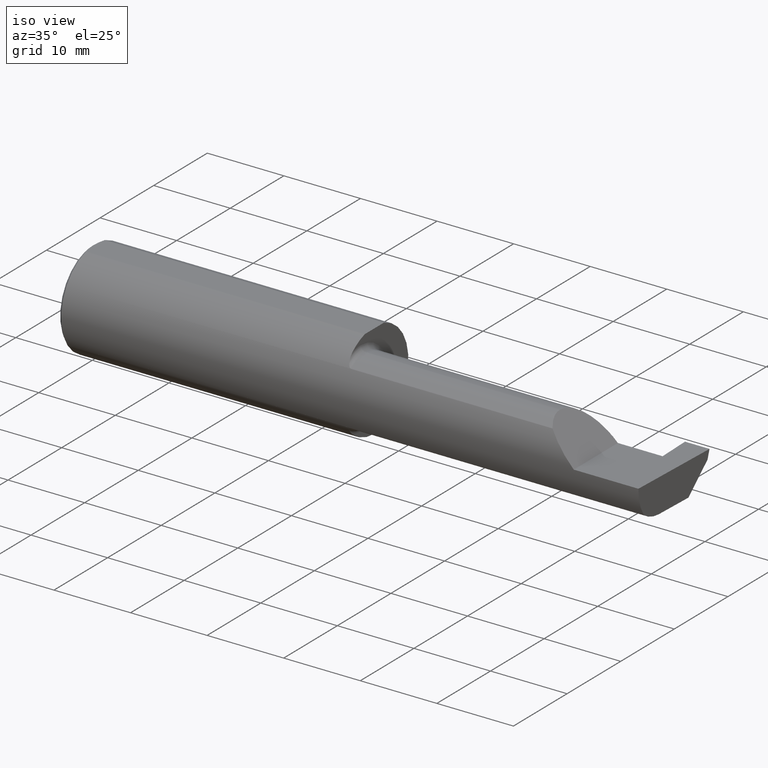
[diagram: clean part render]
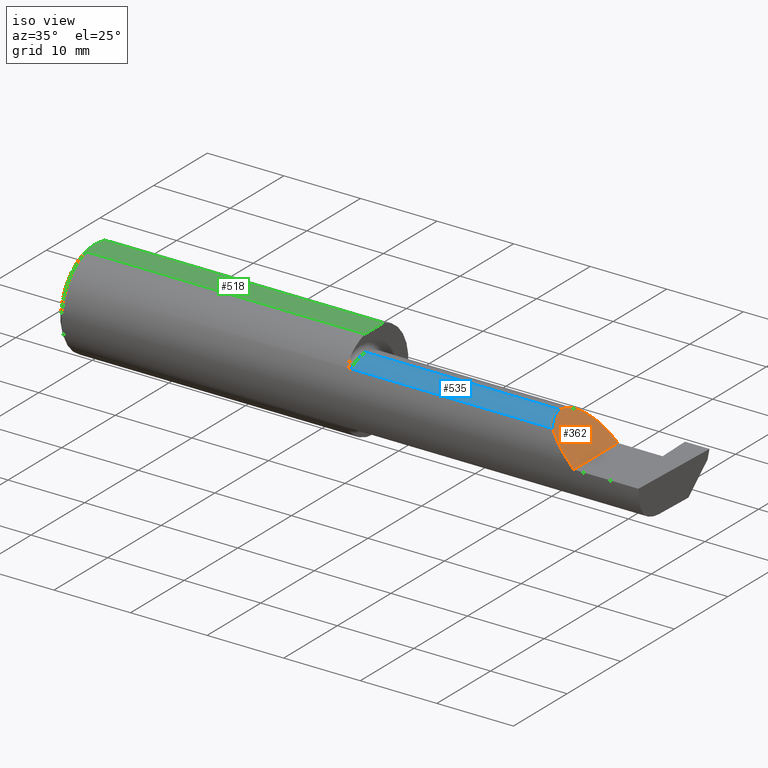
[diagram: same view with three faces highlighted in distinct colors, each labeled with its STEP entity id]
A machine part, iso view with three faces highlighted in distinct colors.
Their STEP definitions:

[orange] entity #362 — the highlighted planar face has unit normal (-0.7071, 0, -0.7071).
#4 = ORIENTED_EDGE ( 'NONE', *, *, #428, .T. ) ;
#64 = AXIS2_PLACEMENT_3D ( 'NONE', #365, #371, #617 ) ;
#69 = CARTESIAN_POINT ( 'NONE',  ( 2.475000000000001421, -0.1400387324517231857, 0.1750000000000000167 ) ) ;
#74 = CARTESIAN_POINT ( 'NONE',  ( 2.511704467739034552, -0.2080850024789292485, 0.1382955322609664139 ) ) ;
#94 = ORIENTED_EDGE ( 'NONE', *, *, #379, .F. ) ;
#131 = FACE_OUTER_BOUND ( 'NONE', #227, .T. ) ;
#132 = LINE ( 'NONE', #190, #451 ) ;
#138 = CARTESIAN_POINT ( 'NONE',  ( 2.650000000000000355, 0.07414999999999997982, 4.286263797015727350E-17 ) ) ;
#158 = VERTEX_POINT ( 'NONE', #222 ) ;
#190 = CARTESIAN_POINT ( 'NONE',  ( 2.650000000000000355, -0.2500000000000000555, 4.286263797015727350E-17 ) ) ;
#222 = CARTESIAN_POINT ( 'NONE',  ( 2.475000000000001421, -0.1008499999999999674, 0.1749999999999999889 ) ) ;
#227 = EDGE_LOOP ( 'NONE', ( #94, #711, #4, #323 ) ) ;
#259 = VERTEX_POINT ( 'NONE', #382 ) ;
#260 = CARTESIAN_POINT ( 'NONE',  ( 2.511704467739034552, -0.2080850024789292485, 0.1382955322609664139 ) ) ;
#323 = ORIENTED_EDGE ( 'NONE', *, *, #398, .F. ) ;
#324 = CARTESIAN_POINT ( 'NONE',  ( 2.650000000000000355, 0.07414999999999997982, 4.286263797015727350E-17 ) ) ;
#351 = CARTESIAN_POINT ( 'NONE',  ( 2.650000000000000355, -0.2498499999999999610, 4.286263797015727350E-17 ) ) ;
#362 = ADVANCED_FACE ( 'NONE', ( #131 ), #563, .F. ) ;
#365 = CARTESIAN_POINT ( 'NONE',  ( 2.650000000000000355, -0.2500000000000000555, 4.286263797015727350E-17 ) ) ;
#371 = DIRECTION ( 'NONE',  ( -0.7071067811865495711, 0.000000000000000000, -0.7071067811865454633 ) ) ;
#379 = EDGE_CURVE ( 'NONE', #609, #158, #454, .T. ) ;
#382 = CARTESIAN_POINT ( 'NONE',  ( 2.650000000000000355, -0.2498499999999999610, 4.286263797015727350E-17 ) ) ;
#398 = EDGE_CURVE ( 'NONE', #158, #506, #565, .T. ) ;
#428 = EDGE_CURVE ( 'NONE', #259, #506, #132, .T. ) ;
#439 = DIRECTION ( 'NONE',  ( -0.000000000000000000, 1.000000000000000000, -0.000000000000000000 ) ) ;
#451 = VECTOR ( 'NONE', #439, 39.37007874015748143 ) ;
#454 =( BOUNDED_CURVE ( )  B_SPLINE_CURVE ( 3, ( #260, #503, #69, #746 ),
 .UNSPECIFIED., .F., .T. ) 
 B_SPLINE_CURVE_WITH_KNOTS ( ( 4, 4 ),
 ( 5.623622464215678463, 6.283185307179586232 ),
 .UNSPECIFIED. ) 
 CURVE ( )  GEOMETRIC_REPRESENTATION_ITEM ( )  RATIONAL_B_SPLINE_CURVE ( ( 1.000000000000000000, 0.9640754331822828371, 0.9640754331822828371, 1.000000000000000000 ) ) 
 REPRESENTATION_ITEM ( '' )  );
#488 = CARTESIAN_POINT ( 'NONE',  ( 2.475000000000001421, -0.1008499999999999674, 0.1749999999999999889 ) ) ;
#503 = CARTESIAN_POINT ( 'NONE',  ( 2.487690731615568307, -0.1771157075472510889, 0.1623092683844330197 ) ) ;
#506 = VERTEX_POINT ( 'NONE', #324 ) ;
#508 =( BOUNDED_CURVE ( )  B_SPLINE_CURVE ( 3, ( #351, #659, #778, #599 ),
 .UNSPECIFIED., .F., .T. ) 
 B_SPLINE_CURVE_WITH_KNOTS ( ( 4, 4 ),
 ( 4.712388980384689674, 5.298966915116346321 ),
 .UNSPECIFIED. ) 
 CURVE ( )  GEOMETRIC_REPRESENTATION_ITEM ( )  RATIONAL_B_SPLINE_CURVE ( ( 1.000000000000000000, 0.9715321379117538569, 0.9715321379117538569, 1.000000000000000000 ) ) 
 REPRESENTATION_ITEM ( '' )  );
#563 = PLANE ( 'NONE',  #64 ) ;
#565 =( BOUNDED_CURVE ( )  B_SPLINE_CURVE ( 3, ( #488, #683, #622, #138 ),
 .UNSPECIFIED., .F., .T. ) 
 B_SPLINE_CURVE_WITH_KNOTS ( ( 4, 4 ),
 ( 0.000000000000000000, 1.570796326794896558 ),
 .UNSPECIFIED. ) 
 CURVE ( )  GEOMETRIC_REPRESENTATION_ITEM ( )  RATIONAL_B_SPLINE_CURVE ( ( 1.000000000000000000, 0.8047378541243649375, 0.8047378541243649375, 1.000000000000000000 ) ) 
 REPRESENTATION_ITEM ( '' )  );
#599 = CARTESIAN_POINT ( 'NONE',  ( 2.511704467739034552, -0.2080850024789292485, 0.1382955322609664139 ) ) ;
#609 = VERTEX_POINT ( 'NONE', #74 ) ;
#617 = DIRECTION ( 'NONE',  ( -0.7071067811865454633, 0.000000000000000000, 0.7071067811865495711 ) ) ;
#622 = CARTESIAN_POINT ( 'NONE',  ( 2.547487373415292744, 0.07414999999999996594, 0.1025126265847083745 ) ) ;
#659 = CARTESIAN_POINT ( 'NONE',  ( 2.600434159100403875, -0.2498499999999999055, 0.04956584089959691769 ) ) ;
#683 = CARTESIAN_POINT ( 'NONE',  ( 2.475000000000001421, 0.001662626584708371512, 0.1749999999999999889 ) ) ;
#711 = ORIENTED_EDGE ( 'NONE', *, *, #727, .F. ) ;
#727 = EDGE_CURVE ( 'NONE', #259, #609, #508, .T. ) ;
#746 = CARTESIAN_POINT ( 'NONE',  ( 2.475000000000001421, -0.1008499999999999674, 0.1749999999999999889 ) ) ;
#778 = CARTESIAN_POINT ( 'NONE',  ( 2.552984868485333347, -0.2355204011147992438, 0.09701513151466735485 ) ) ;

[blue] entity #535 — the highlighted cylindrical surface (partial cylindrical patch) has radius 4.445 mm, axis along (-1, -0, -0).
#31 = DIRECTION ( 'NONE',  ( -1.000000000000000000, -0.000000000000000000, -0.000000000000000000 ) ) ;
#39 = DIRECTION ( 'NONE',  ( 1.000000000000000000, 0.000000000000000000, 0.000000000000000000 ) ) ;
#57 = EDGE_LOOP ( 'NONE', ( #390, #364, #165, #270 ) ) ;
#63 = DIRECTION ( 'NONE',  ( -1.000000000000000000, -0.000000000000000000, -0.000000000000000000 ) ) ;
#69 = CARTESIAN_POINT ( 'NONE',  ( 2.475000000000001421, -0.1400387324517231857, 0.1750000000000000167 ) ) ;
#70 = CARTESIAN_POINT ( 'NONE',  ( 1.474999999999999867, -0.2080850024789292485, 0.1382955322609664972 ) ) ;
#74 = CARTESIAN_POINT ( 'NONE',  ( 2.511704467739034552, -0.2080850024789292485, 0.1382955322609664139 ) ) ;
#103 = AXIS2_PLACEMENT_3D ( 'NONE', #570, #31, #623 ) ;
#142 = FACE_OUTER_BOUND ( 'NONE', #57, .T. ) ;
#158 = VERTEX_POINT ( 'NONE', #222 ) ;
#165 = ORIENTED_EDGE ( 'NONE', *, *, #179, .F. ) ;
#179 = EDGE_CURVE ( 'NONE', #460, #209, #641, .T. ) ;
#209 = VERTEX_POINT ( 'NONE', #496 ) ;
#222 = CARTESIAN_POINT ( 'NONE',  ( 2.475000000000001421, -0.1008499999999999674, 0.1749999999999999889 ) ) ;
#234 = LINE ( 'NONE', #470, #621 ) ;
#260 = CARTESIAN_POINT ( 'NONE',  ( 2.511704467739034552, -0.2080850024789292485, 0.1382955322609664139 ) ) ;
#270 = ORIENTED_EDGE ( 'NONE', *, *, #640, .T. ) ;
#275 = CYLINDRICAL_SURFACE ( 'NONE', #491, 0.1749999999999999889 ) ;
#364 = ORIENTED_EDGE ( 'NONE', *, *, #441, .T. ) ;
#372 = VECTOR ( 'NONE', #63, 39.37007874015748143 ) ;
#379 = EDGE_CURVE ( 'NONE', #609, #158, #454, .T. ) ;
#384 = CARTESIAN_POINT ( 'NONE',  ( 1.450000000000000178, -0.1008499999999999674, 0.000000000000000000 ) ) ;
#390 = ORIENTED_EDGE ( 'NONE', *, *, #379, .T. ) ;
#433 = LINE ( 'NONE', #735, #372 ) ;
#441 = EDGE_CURVE ( 'NONE', #158, #209, #433, .T. ) ;
#454 =( BOUNDED_CURVE ( )  B_SPLINE_CURVE ( 3, ( #260, #503, #69, #746 ),
 .UNSPECIFIED., .F., .T. ) 
 B_SPLINE_CURVE_WITH_KNOTS ( ( 4, 4 ),
 ( 5.623622464215678463, 6.283185307179586232 ),
 .UNSPECIFIED. ) 
 CURVE ( )  GEOMETRIC_REPRESENTATION_ITEM ( )  RATIONAL_B_SPLINE_CURVE ( ( 1.000000000000000000, 0.9640754331822828371, 0.9640754331822828371, 1.000000000000000000 ) ) 
 REPRESENTATION_ITEM ( '' )  );
#460 = VERTEX_POINT ( 'NONE', #70 ) ;
#470 = CARTESIAN_POINT ( 'NONE',  ( 2.174500000000000099, -0.2080850024789291652, 0.1382955322609665250 ) ) ;
#491 = AXIS2_PLACEMENT_3D ( 'NONE', #384, #573, #513 ) ;
#496 = CARTESIAN_POINT ( 'NONE',  ( 1.474999999999999867, -0.1008499999999999674, 0.1749999999999999889 ) ) ;
#503 = CARTESIAN_POINT ( 'NONE',  ( 2.487690731615568307, -0.1771157075472510889, 0.1623092683844330197 ) ) ;
#513 = DIRECTION ( 'NONE',  ( 0.000000000000000000, 0.000000000000000000, 1.000000000000000000 ) ) ;
#535 = ADVANCED_FACE ( 'NONE', ( #142 ), #275, .T. ) ;
#570 = CARTESIAN_POINT ( 'NONE',  ( 1.474999999999999867, -0.1008499999999999674, 0.000000000000000000 ) ) ;
#573 = DIRECTION ( 'NONE',  ( -1.000000000000000000, -0.000000000000000000, -0.000000000000000000 ) ) ;
#609 = VERTEX_POINT ( 'NONE', #74 ) ;
#621 = VECTOR ( 'NONE', #39, 39.37007874015748143 ) ;
#623 = DIRECTION ( 'NONE',  ( 0.000000000000000000, 0.000000000000000000, 1.000000000000000000 ) ) ;
#640 = EDGE_CURVE ( 'NONE', #460, #609, #234, .T. ) ;
#641 = CIRCLE ( 'NONE', #103, 0.1749999999999999889 ) ;
#735 = CARTESIAN_POINT ( 'NONE',  ( 1.450000000000000178, -0.1008499999999999674, 0.1749999999999999889 ) ) ;
#746 = CARTESIAN_POINT ( 'NONE',  ( 2.475000000000001421, -0.1008499999999999674, 0.1749999999999999889 ) ) ;

[green] entity #518 — the highlighted planar face has unit normal (0, -0, 1).
#19 = CARTESIAN_POINT ( 'NONE',  ( 0.009312860630924745670, 0.04712480857212029278, 0.2398500000000000354 ) ) ;
#28 = DIRECTION ( 'NONE',  ( 1.000000000000000000, 0.000000000000000000, -0.000000000000000000 ) ) ;
#35 = CARTESIAN_POINT ( 'NONE',  ( 0.005880636388018714231, -0.02358947477502552903, 0.2398500000000000354 ) ) ;
#43 = CARTESIAN_POINT ( 'NONE',  ( 0.000000000000000000, -0.06997856814768359246, 0.2398500000000000076 ) ) ;
#81 = CARTESIAN_POINT ( 'NONE',  ( 0.01181966702888963446, 0.05862357455657472849, 0.2398500000000000631 ) ) ;
#87 = CARTESIAN_POINT ( 'NONE',  ( 1.450000000000000178, -0.2498499999999999888, 0.2398500000000000076 ) ) ;
#101 = CARTESIAN_POINT ( 'NONE',  ( 1.450000000000000178, 0.06997856814768360634, 0.2398500000000000076 ) ) ;
#110 = DIRECTION ( 'NONE',  ( -1.000000000000000000, -0.000000000000000000, -0.000000000000000000 ) ) ;
#112 = B_SPLINE_CURVE_WITH_KNOTS ( 'NONE', 3,
 ( #725, #283, #35, #783, #471, #600 ),
 .UNSPECIFIED., .F., .F.,
 ( 4, 2, 4 ),
 ( 0.007845223120669342701, 0.008734561288375082555, 0.009623899456080820675 ),
 .UNSPECIFIED. ) ;
#139 = CARTESIAN_POINT ( 'NONE',  ( 0.005899890343961325216, 0.02378560009989246285, 0.2398500000000000076 ) ) ;
#146 = FACE_OUTER_BOUND ( 'NONE', #331, .T. ) ;
#157 = CARTESIAN_POINT ( 'NONE',  ( 0.004999999999999748569, 0.01185123536186986556, 0.2398500000000000354 ) ) ;
#186 = VECTOR ( 'NONE', #537, 39.37007874015748143 ) ;
#196 = EDGE_CURVE ( 'NONE', #718, #360, #220, .T. ) ;
#203 = LINE ( 'NONE', #87, #592 ) ;
#220 = B_SPLINE_CURVE_WITH_KNOTS ( 'NONE', 3,
 ( #280, #81, #19, #139, #157, #706 ),
 .UNSPECIFIED., .F., .F.,
 ( 4, 2, 4 ),
 ( 0.006064768674679249863, 0.006954995897674296282, 0.007845223120669342701 ),
 .UNSPECIFIED. ) ;
#280 = CARTESIAN_POINT ( 'NONE',  ( 0.01499999999999998036, 0.06997856814768359246, 0.2398500000000000076 ) ) ;
#283 = CARTESIAN_POINT ( 'NONE',  ( 0.004999999999999737293, -0.01183939972798748325, 0.2398500000000000631 ) ) ;
#317 = EDGE_CURVE ( 'NONE', #337, #718, #660, .T. ) ;
#331 = EDGE_LOOP ( 'NONE', ( #339, #584, #522, #510, #358 ) ) ;
#337 = VERTEX_POINT ( 'NONE', #101 ) ;
#339 = ORIENTED_EDGE ( 'NONE', *, *, #342, .T. ) ;
#342 = EDGE_CURVE ( 'NONE', #456, #758, #408, .T. ) ;
#346 = EDGE_CURVE ( 'NONE', #360, #456, #112, .T. ) ;
#358 = ORIENTED_EDGE ( 'NONE', *, *, #346, .T. ) ;
#360 = VERTEX_POINT ( 'NONE', #603 ) ;
#373 = CARTESIAN_POINT ( 'NONE',  ( 0.01499999999999999944, -0.06997856814768359246, 0.2398500000000000076 ) ) ;
#408 = LINE ( 'NONE', #43, #186 ) ;
#412 = CARTESIAN_POINT ( 'NONE',  ( 0.01499999999999998036, 0.06997856814768359246, 0.2398500000000000076 ) ) ;
#456 = VERTEX_POINT ( 'NONE', #373 ) ;
#471 = CARTESIAN_POINT ( 'NONE',  ( 0.01180609504125290990, -0.05857511741890331081, 0.2398500000000000354 ) ) ;
#476 = CARTESIAN_POINT ( 'NONE',  ( 1.450000000000000178, -0.06997856814768374512, 0.2398500000000000076 ) ) ;
#504 = DIRECTION ( 'NONE',  ( 0.000000000000000000, -0.000000000000000000, 1.000000000000000000 ) ) ;
#510 = ORIENTED_EDGE ( 'NONE', *, *, #196, .T. ) ;
#518 = ADVANCED_FACE ( 'NONE', ( #146 ), #569, .T. ) ;
#520 = CARTESIAN_POINT ( 'NONE',  ( 3.000000000000000444, -0.2498499999999999888, 0.2398500000000000076 ) ) ;
#522 = ORIENTED_EDGE ( 'NONE', *, *, #317, .T. ) ;
#537 = DIRECTION ( 'NONE',  ( 1.000000000000000000, 0.000000000000000000, 0.000000000000000000 ) ) ;
#546 = EDGE_CURVE ( 'NONE', #758, #337, #203, .T. ) ;
#569 = PLANE ( 'NONE',  #772 ) ;
#584 = ORIENTED_EDGE ( 'NONE', *, *, #546, .T. ) ;
#592 = VECTOR ( 'NONE', #631, 39.37007874015748143 ) ;
#600 = CARTESIAN_POINT ( 'NONE',  ( 0.01499999999999999944, -0.06997856814768359246, 0.2398500000000000076 ) ) ;
#603 = CARTESIAN_POINT ( 'NONE',  ( 0.004999999999999471013, 5.665694022114171174E-17, 0.2398500000000000076 ) ) ;
#631 = DIRECTION ( 'NONE',  ( -0.000000000000000000, 1.000000000000000000, 0.000000000000000000 ) ) ;
#660 = LINE ( 'NONE', #714, #722 ) ;
#706 = CARTESIAN_POINT ( 'NONE',  ( 0.004999999999999471013, 5.665694022114171174E-17, 0.2398500000000000076 ) ) ;
#714 = CARTESIAN_POINT ( 'NONE',  ( 0.000000000000000000, 0.06997856814768359246, 0.2398500000000000076 ) ) ;
#718 = VERTEX_POINT ( 'NONE', #412 ) ;
#722 = VECTOR ( 'NONE', #110, 39.37007874015748143 ) ;
#725 = CARTESIAN_POINT ( 'NONE',  ( 0.004999999999999471013, 5.665694022114171174E-17, 0.2398500000000000076 ) ) ;
#758 = VERTEX_POINT ( 'NONE', #476 ) ;
#772 = AXIS2_PLACEMENT_3D ( 'NONE', #520, #504, #28 ) ;
#783 = CARTESIAN_POINT ( 'NONE',  ( 0.009274236576542580976, -0.04692405468904852633, 0.2398500000000000076 ) ) ;